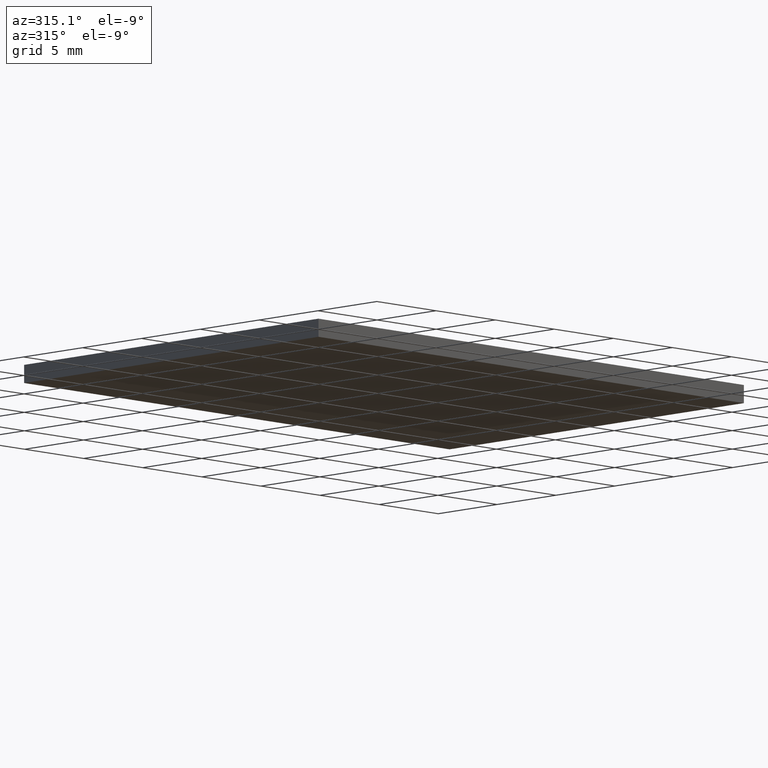
[diagram: clean part render]
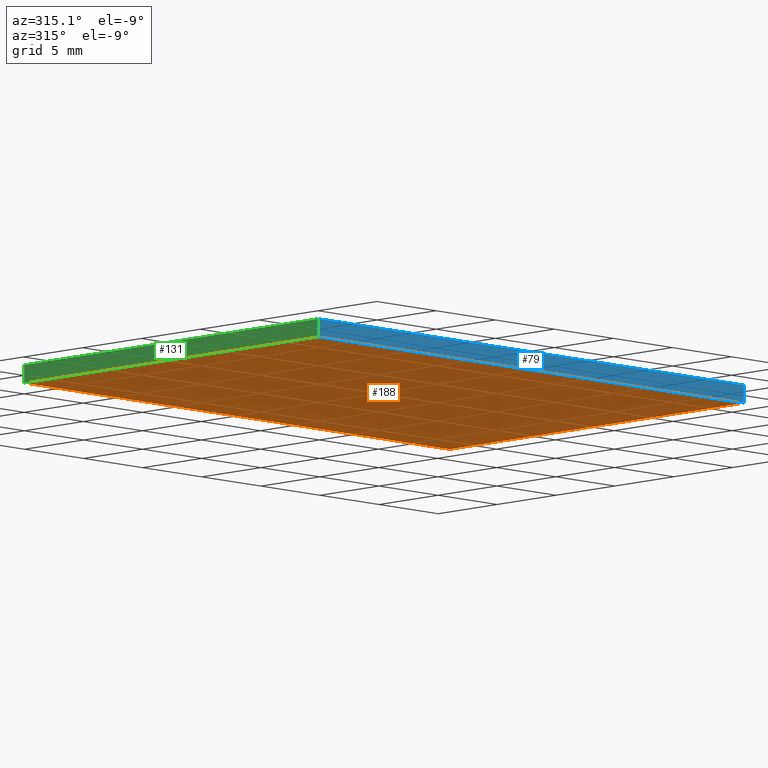
[diagram: same view with three faces highlighted in distinct colors, each labeled with its STEP entity id]
A machine part, auxiliary view with three faces highlighted in distinct colors.
Their STEP definitions:

[orange] entity #188 — the highlighted planar face has unit normal (0, 0, -1).
#1 = CARTESIAN_POINT ( 'NONE',  ( 0.000000000000000000, 0.000000000000000000, 0.000000000000000000 ) ) ;
#2 = FACE_OUTER_BOUND ( 'NONE', #170, .T. ) ;
#26 = VECTOR ( 'NONE', #141, 1000.000000000000000 ) ;
#31 = EDGE_CURVE ( 'NONE', #48, #47, #97, .T. ) ;
#33 = ORIENTED_EDGE ( 'NONE', *, *, #31, .F. ) ;
#35 = VERTEX_POINT ( 'NONE', #130 ) ;
#47 = VERTEX_POINT ( 'NONE', #157 ) ;
#48 = VERTEX_POINT ( 'NONE', #100 ) ;
#50 = ORIENTED_EDGE ( 'NONE', *, *, #68, .F. ) ;
#51 = VECTOR ( 'NONE', #67, 1000.000000000000000 ) ;
#57 = CARTESIAN_POINT ( 'NONE',  ( 36.00000000000000000, 25.00000000000000000, 0.000000000000000000 ) ) ;
#62 = CARTESIAN_POINT ( 'NONE',  ( 0.000000000000000000, 25.00000000000000000, 0.000000000000000000 ) ) ;
#66 = ORIENTED_EDGE ( 'NONE', *, *, #161, .F. ) ;
#67 = DIRECTION ( 'NONE',  ( 1.000000000000000000, 0.000000000000000000, 0.000000000000000000 ) ) ;
#68 = EDGE_CURVE ( 'NONE', #35, #48, #92, .T. ) ;
#91 = VECTOR ( 'NONE', #199, 1000.000000000000000 ) ;
#92 = LINE ( 'NONE', #184, #26 ) ;
#97 = LINE ( 'NONE', #146, #51 ) ;
#100 = CARTESIAN_POINT ( 'NONE',  ( 0.000000000000000000, 0.000000000000000000, 0.000000000000000000 ) ) ;
#117 = AXIS2_PLACEMENT_3D ( 'NONE', #1, #137, #185 ) ;
#124 = DIRECTION ( 'NONE',  ( -1.000000000000000000, -0.000000000000000000, -0.000000000000000000 ) ) ;
#125 = PLANE ( 'NONE',  #117 ) ;
#126 = VECTOR ( 'NONE', #124, 1000.000000000000000 ) ;
#130 = CARTESIAN_POINT ( 'NONE',  ( 0.000000000000000000, 25.00000000000000000, 0.000000000000000000 ) ) ;
#135 = LINE ( 'NONE', #151, #91 ) ;
#137 = DIRECTION ( 'NONE',  ( 0.000000000000000000, 0.000000000000000000, -1.000000000000000000 ) ) ;
#141 = DIRECTION ( 'NONE',  ( -0.000000000000000000, -1.000000000000000000, -0.000000000000000000 ) ) ;
#144 = LINE ( 'NONE', #62, #126 ) ;
#146 = CARTESIAN_POINT ( 'NONE',  ( 0.000000000000000000, 0.000000000000000000, 0.000000000000000000 ) ) ;
#150 = VERTEX_POINT ( 'NONE', #57 ) ;
#151 = CARTESIAN_POINT ( 'NONE',  ( 36.00000000000000000, 0.000000000000000000, 0.000000000000000000 ) ) ;
#157 = CARTESIAN_POINT ( 'NONE',  ( 36.00000000000000000, 0.000000000000000000, 0.000000000000000000 ) ) ;
#161 = EDGE_CURVE ( 'NONE', #47, #150, #135, .T. ) ;
#170 = EDGE_LOOP ( 'NONE', ( #50, #176, #66, #33 ) ) ;
#176 = ORIENTED_EDGE ( 'NONE', *, *, #183, .F. ) ;
#183 = EDGE_CURVE ( 'NONE', #150, #35, #144, .T. ) ;
#184 = CARTESIAN_POINT ( 'NONE',  ( 0.000000000000000000, 0.000000000000000000, 0.000000000000000000 ) ) ;
#185 = DIRECTION ( 'NONE',  ( -1.000000000000000000, 0.000000000000000000, -0.000000000000000000 ) ) ;
#188 = ADVANCED_FACE ( 'NONE', ( #2 ), #125, .T. ) ;
#199 = DIRECTION ( 'NONE',  ( 0.000000000000000000, 1.000000000000000000, 0.000000000000000000 ) ) ;

[blue] entity #79 — the highlighted planar face has unit normal (0, 1, 0).
#3 = VECTOR ( 'NONE', #10, 1000.000000000000000 ) ;
#4 = ORIENTED_EDGE ( 'NONE', *, *, #95, .F. ) ;
#6 = CARTESIAN_POINT ( 'NONE',  ( 36.00000000000000000, 0.000000000000000000, 1.100000000000000089 ) ) ;
#8 = VECTOR ( 'NONE', #13, 1000.000000000000000 ) ;
#10 = DIRECTION ( 'NONE',  ( -0.000000000000000000, -0.000000000000000000, -1.000000000000000000 ) ) ;
#11 = FACE_OUTER_BOUND ( 'NONE', #160, .T. ) ;
#13 = DIRECTION ( 'NONE',  ( -0.000000000000000000, -0.000000000000000000, -1.000000000000000000 ) ) ;
#15 = CARTESIAN_POINT ( 'NONE',  ( 0.000000000000000000, 0.000000000000000000, 1.100000000000000089 ) ) ;
#22 = EDGE_CURVE ( 'NONE', #113, #47, #128, .T. ) ;
#24 = PLANE ( 'NONE',  #132 ) ;
#29 = LINE ( 'NONE', #94, #96 ) ;
#31 = EDGE_CURVE ( 'NONE', #48, #47, #97, .T. ) ;
#34 = ORIENTED_EDGE ( 'NONE', *, *, #31, .T. ) ;
#39 = CARTESIAN_POINT ( 'NONE',  ( 0.000000000000000000, 0.000000000000000000, 1.100000000000000089 ) ) ;
#45 = CARTESIAN_POINT ( 'NONE',  ( 0.000000000000000000, 0.000000000000000000, 1.100000000000000089 ) ) ;
#47 = VERTEX_POINT ( 'NONE', #157 ) ;
#48 = VERTEX_POINT ( 'NONE', #100 ) ;
#51 = VECTOR ( 'NONE', #67, 1000.000000000000000 ) ;
#56 = EDGE_CURVE ( 'NONE', #115, #48, #192, .T. ) ;
#61 = DIRECTION ( 'NONE',  ( 0.000000000000000000, -0.000000000000000000, 1.000000000000000000 ) ) ;
#67 = DIRECTION ( 'NONE',  ( 1.000000000000000000, 0.000000000000000000, 0.000000000000000000 ) ) ;
#76 = DIRECTION ( 'NONE',  ( 0.000000000000000000, 1.000000000000000000, 0.000000000000000000 ) ) ;
#79 = ADVANCED_FACE ( 'NONE', ( #11 ), #24, .F. ) ;
#86 = ORIENTED_EDGE ( 'NONE', *, *, #56, .T. ) ;
#94 = CARTESIAN_POINT ( 'NONE',  ( 0.000000000000000000, 0.000000000000000000, 1.100000000000000089 ) ) ;
#95 = EDGE_CURVE ( 'NONE', #115, #113, #29, .T. ) ;
#96 = VECTOR ( 'NONE', #154, 1000.000000000000000 ) ;
#97 = LINE ( 'NONE', #146, #51 ) ;
#100 = CARTESIAN_POINT ( 'NONE',  ( 0.000000000000000000, 0.000000000000000000, 0.000000000000000000 ) ) ;
#113 = VERTEX_POINT ( 'NONE', #186 ) ;
#115 = VERTEX_POINT ( 'NONE', #39 ) ;
#128 = LINE ( 'NONE', #6, #8 ) ;
#132 = AXIS2_PLACEMENT_3D ( 'NONE', #45, #76, #61 ) ;
#146 = CARTESIAN_POINT ( 'NONE',  ( 0.000000000000000000, 0.000000000000000000, 0.000000000000000000 ) ) ;
#154 = DIRECTION ( 'NONE',  ( 1.000000000000000000, 0.000000000000000000, 0.000000000000000000 ) ) ;
#157 = CARTESIAN_POINT ( 'NONE',  ( 36.00000000000000000, 0.000000000000000000, 0.000000000000000000 ) ) ;
#158 = ORIENTED_EDGE ( 'NONE', *, *, #22, .F. ) ;
#160 = EDGE_LOOP ( 'NONE', ( #34, #158, #4, #86 ) ) ;
#186 = CARTESIAN_POINT ( 'NONE',  ( 36.00000000000000000, 0.000000000000000000, 1.100000000000000089 ) ) ;
#192 = LINE ( 'NONE', #15, #3 ) ;

[green] entity #131 — the highlighted planar face has unit normal (1, 0, 0).
#3 = VECTOR ( 'NONE', #10, 1000.000000000000000 ) ;
#10 = DIRECTION ( 'NONE',  ( -0.000000000000000000, -0.000000000000000000, -1.000000000000000000 ) ) ;
#14 = EDGE_LOOP ( 'NONE', ( #147, #112, #82, #190 ) ) ;
#15 = CARTESIAN_POINT ( 'NONE',  ( 0.000000000000000000, 0.000000000000000000, 1.100000000000000089 ) ) ;
#26 = VECTOR ( 'NONE', #141, 1000.000000000000000 ) ;
#28 = DIRECTION ( 'NONE',  ( -0.000000000000000000, -0.000000000000000000, -1.000000000000000000 ) ) ;
#35 = VERTEX_POINT ( 'NONE', #130 ) ;
#38 = FACE_OUTER_BOUND ( 'NONE', #14, .T. ) ;
#39 = CARTESIAN_POINT ( 'NONE',  ( 0.000000000000000000, 0.000000000000000000, 1.100000000000000089 ) ) ;
#48 = VERTEX_POINT ( 'NONE', #100 ) ;
#56 = EDGE_CURVE ( 'NONE', #115, #48, #192, .T. ) ;
#58 = LINE ( 'NONE', #121, #64 ) ;
#64 = VECTOR ( 'NONE', #106, 1000.000000000000000 ) ;
#68 = EDGE_CURVE ( 'NONE', #35, #48, #92, .T. ) ;
#71 = EDGE_CURVE ( 'NONE', #116, #115, #58, .T. ) ;
#80 = AXIS2_PLACEMENT_3D ( 'NONE', #105, #196, #163 ) ;
#82 = ORIENTED_EDGE ( 'NONE', *, *, #71, .F. ) ;
#87 = PLANE ( 'NONE',  #80 ) ;
#89 = EDGE_CURVE ( 'NONE', #116, #35, #123, .T. ) ;
#90 = CARTESIAN_POINT ( 'NONE',  ( 0.000000000000000000, 25.00000000000000000, 1.100000000000000089 ) ) ;
#92 = LINE ( 'NONE', #184, #26 ) ;
#100 = CARTESIAN_POINT ( 'NONE',  ( 0.000000000000000000, 0.000000000000000000, 0.000000000000000000 ) ) ;
#105 = CARTESIAN_POINT ( 'NONE',  ( 0.000000000000000000, 0.000000000000000000, 1.100000000000000089 ) ) ;
#106 = DIRECTION ( 'NONE',  ( -0.000000000000000000, -1.000000000000000000, -0.000000000000000000 ) ) ;
#112 = ORIENTED_EDGE ( 'NONE', *, *, #56, .F. ) ;
#115 = VERTEX_POINT ( 'NONE', #39 ) ;
#116 = VERTEX_POINT ( 'NONE', #90 ) ;
#121 = CARTESIAN_POINT ( 'NONE',  ( 0.000000000000000000, 0.000000000000000000, 1.100000000000000089 ) ) ;
#123 = LINE ( 'NONE', #181, #165 ) ;
#130 = CARTESIAN_POINT ( 'NONE',  ( 0.000000000000000000, 25.00000000000000000, 0.000000000000000000 ) ) ;
#131 = ADVANCED_FACE ( 'NONE', ( #38 ), #87, .F. ) ;
#141 = DIRECTION ( 'NONE',  ( -0.000000000000000000, -1.000000000000000000, -0.000000000000000000 ) ) ;
#147 = ORIENTED_EDGE ( 'NONE', *, *, #68, .T. ) ;
#163 = DIRECTION ( 'NONE',  ( 0.000000000000000000, 0.000000000000000000, -1.000000000000000000 ) ) ;
#165 = VECTOR ( 'NONE', #28, 1000.000000000000000 ) ;
#181 = CARTESIAN_POINT ( 'NONE',  ( 0.000000000000000000, 25.00000000000000000, 1.100000000000000089 ) ) ;
#184 = CARTESIAN_POINT ( 'NONE',  ( 0.000000000000000000, 0.000000000000000000, 0.000000000000000000 ) ) ;
#190 = ORIENTED_EDGE ( 'NONE', *, *, #89, .T. ) ;
#192 = LINE ( 'NONE', #15, #3 ) ;
#196 = DIRECTION ( 'NONE',  ( 1.000000000000000000, 0.000000000000000000, 0.000000000000000000 ) ) ;